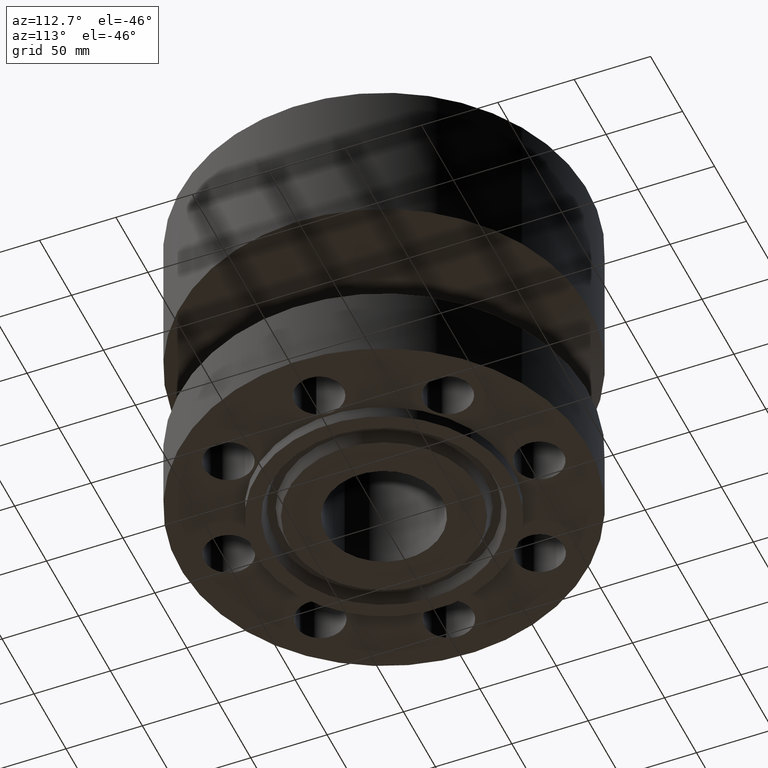
[diagram: clean part render]
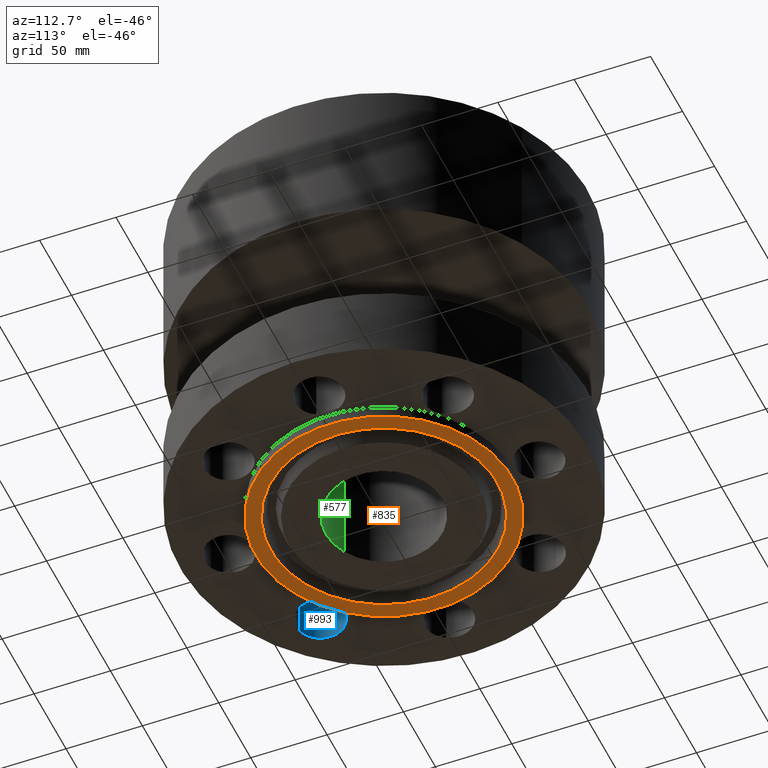
[diagram: same view with three faces highlighted in distinct colors, each labeled with its STEP entity id]
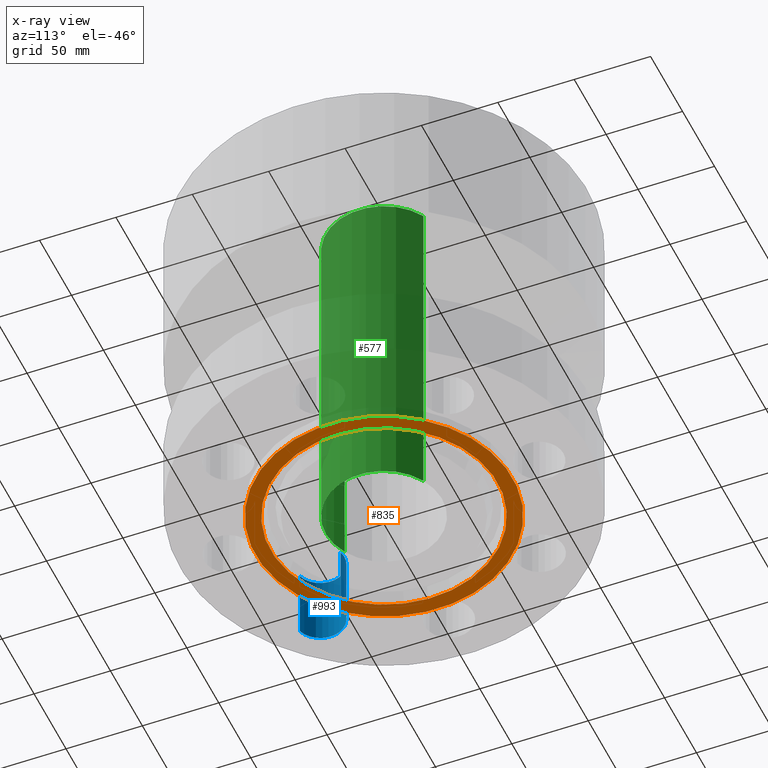
[diagram: x-ray of the same camera — body ghosted, the three highlighted faces saturated]
A machine part, auxiliary view with three faces highlighted in distinct colors.
The next image is the same camera in x-ray (body ghosted, the three faces saturated) — at least one of them is partly hidden behind the body in this view.
Their STEP definitions:

[orange] entity #835 — the highlighted planar face has unit normal (0, 0, -1).
#593=AXIS2_PLACEMENT_3D('Plane Axis2P3D',#590,#591,#592) ;
#784=AXIS2_PLACEMENT_3D('Circle Axis2P3D',#782,#783,$) ;
#803=AXIS2_PLACEMENT_3D('Circle Axis2P3D',#801,#802,$) ;
#815=AXIS2_PLACEMENT_3D('Circle Axis2P3D',#813,#814,$) ;
#824=AXIS2_PLACEMENT_3D('Circle Axis2P3D',#822,#823,$) ;
#590=CARTESIAN_POINT('Axis2P3D Location',(0.,1.50000000001,-0.313000000001)) ;
#779=CARTESIAN_POINT('Vertex',(-1.40088142381,-2.56429624585,-0.313000000001)) ;
#782=CARTESIAN_POINT('Axis2P3D Location',(0.,0.,-0.313000000001)) ;
#786=CARTESIAN_POINT('Vertex',(1.40088142381,2.56429624585,-0.313000000001)) ;
#801=CARTESIAN_POINT('Axis2P3D Location',(0.,0.,-0.313000000001)) ;
#813=CARTESIAN_POINT('Axis2P3D Location',(0.,0.,-0.313000000001)) ;
#817=CARTESIAN_POINT('Vertex',(-1.58809709663,-2.90699223627,-0.313000000001)) ;
#819=CARTESIAN_POINT('Vertex',(1.58809709663,2.90699223627,-0.313000000001)) ;
#822=CARTESIAN_POINT('Axis2P3D Location',(0.,0.,-0.313000000001)) ;
#591=DIRECTION('Axis2P3D Direction',(0.,0.,-0.0393700787402)) ;
#592=DIRECTION('Axis2P3D XDirection',(0.0393700787402,0.,0.)) ;
#783=DIRECTION('Axis2P3D Direction',(0.,0.,-0.0393700787402)) ;
#802=DIRECTION('Axis2P3D Direction',(0.,0.,-0.0393700787402)) ;
#814=DIRECTION('Axis2P3D Direction',(0.,0.,-0.0393700787402)) ;
#823=DIRECTION('Axis2P3D Direction',(0.,0.,-0.0393700787402)) ;
#828=ORIENTED_EDGE('',*,*,#821,.T.) ;
#829=ORIENTED_EDGE('',*,*,#826,.T.) ;
#832=ORIENTED_EDGE('',*,*,#805,.F.) ;
#833=ORIENTED_EDGE('',*,*,#788,.F.) ;
#834=FACE_BOUND('',#831,.T.) ;
#835=ADVANCED_FACE('PartBody',(#830,#834),#594,.T.) ;
#785=CIRCLE('generated circle',#784,2.92200000001) ;
#804=CIRCLE('generated circle',#803,2.92200000001) ;
#816=CIRCLE('generated circle',#815,3.31250000001) ;
#825=CIRCLE('generated circle',#824,3.31250000001) ;
#788=EDGE_CURVE('',#780,#787,#785,.T.) ;
#805=EDGE_CURVE('',#787,#780,#804,.T.) ;
#821=EDGE_CURVE('',#818,#820,#816,.T.) ;
#826=EDGE_CURVE('',#820,#818,#825,.T.) ;
#827=EDGE_LOOP('',(#828,#829)) ;
#831=EDGE_LOOP('',(#832,#833)) ;
#830=FACE_OUTER_BOUND('',#827,.T.) ;
#594=PLANE('',#593) ;
#780=VERTEX_POINT('',#779) ;
#787=VERTEX_POINT('',#786) ;
#818=VERTEX_POINT('',#817) ;
#820=VERTEX_POINT('',#819) ;

[blue] entity #993 — the highlighted cylindrical surface (edge-blend (fillet) strip) has radius 15.875 mm, axis along (0, 0, 1).
#163=AXIS2_PLACEMENT_3D('Circle Axis2P3D',#161,#162,$) ;
#966=AXIS2_PLACEMENT_3D('Cylinder Axis2P3D',#963,#964,#965) ;
#984=AXIS2_PLACEMENT_3D('Circle Axis2P3D',#982,#983,$) ;
#161=CARTESIAN_POINT('Axis2P3D Location',(-2.82842712476,-2.82842712476,0.)) ;
#165=CARTESIAN_POINT('Vertex',(-3.00438933172,-3.4281456435,0.)) ;
#167=CARTESIAN_POINT('Vertex',(-2.65246491779,-2.22870860601,0.)) ;
#963=CARTESIAN_POINT('Axis2P3D Location',(-2.82842712476,-2.82842712476,0.00393700787402)) ;
#968=CARTESIAN_POINT('Line Origine',(-3.00438933172,-3.4281456435,0.940000000004)) ;
#972=CARTESIAN_POINT('Vertex',(-3.00438933172,-3.4281456435,1.88000000001)) ;
#975=CARTESIAN_POINT('Line Origine',(-2.65246491779,-2.22870860601,0.940000000004)) ;
#979=CARTESIAN_POINT('Vertex',(-2.65246491779,-2.22870860601,1.88000000001)) ;
#982=CARTESIAN_POINT('Axis2P3D Location',(-2.82842712476,-2.82842712476,1.88000000001)) ;
#162=DIRECTION('Axis2P3D Direction',(0.,0.,-0.0393700787402)) ;
#964=DIRECTION('Axis2P3D Direction',(0.,0.,0.0393700787402)) ;
#965=DIRECTION('Axis2P3D XDirection',(-0.0110842335096,-0.0377775444876,0.)) ;
#969=DIRECTION('Vector Direction',(0.,0.,0.0393700787402)) ;
#976=DIRECTION('Vector Direction',(0.,0.,0.0393700787402)) ;
#983=DIRECTION('Axis2P3D Direction',(0.,0.,0.0393700787402)) ;
#970=VECTOR('Line Direction',#969,0.0393700787402) ;
#977=VECTOR('Line Direction',#976,0.0393700787402) ;
#988=ORIENTED_EDGE('',*,*,#974,.T.) ;
#989=ORIENTED_EDGE('',*,*,#169,.T.) ;
#990=ORIENTED_EDGE('',*,*,#981,.F.) ;
#991=ORIENTED_EDGE('',*,*,#986,.F.) ;
#993=ADVANCED_FACE('PartBody',(#992),#967,.F.) ;
#164=CIRCLE('generated circle',#163,0.625000000002) ;
#985=CIRCLE('generated circle',#984,0.625000000002) ;
#967=CYLINDRICAL_SURFACE('generated cylinder',#966,0.625000000002) ;
#169=EDGE_CURVE('',#166,#168,#164,.T.) ;
#974=EDGE_CURVE('',#973,#166,#971,.F.) ;
#981=EDGE_CURVE('',#980,#168,#978,.F.) ;
#986=EDGE_CURVE('',#973,#980,#985,.F.) ;
#987=EDGE_LOOP('',(#988,#989,#990,#991)) ;
#992=FACE_OUTER_BOUND('',#987,.T.) ;
#971=LINE('Line',#968,#970) ;
#978=LINE('Line',#975,#977) ;
#166=VERTEX_POINT('',#165) ;
#168=VERTEX_POINT('',#167) ;
#973=VERTEX_POINT('',#972) ;
#980=VERTEX_POINT('',#979) ;

[green] entity #577 — the highlighted cylindrical surface (partial cylindrical patch) has radius 38.1 mm, axis along (0, 0, -1).
#539=AXIS2_PLACEMENT_3D('Circle Axis2P3D',#537,#538,$) ;
#550=AXIS2_PLACEMENT_3D('Cylinder Axis2P3D',#547,#548,#549) ;
#561=AXIS2_PLACEMENT_3D('Circle Axis2P3D',#559,#560,$) ;
#532=CARTESIAN_POINT('Vertex',(-0.719138307909,-1.31637384284,8.75000000003)) ;
#534=CARTESIAN_POINT('Vertex',(0.719138307909,1.31637384284,8.75000000003)) ;
#537=CARTESIAN_POINT('Axis2P3D Location',(0.,0.,8.75000000003)) ;
#547=CARTESIAN_POINT('Axis2P3D Location',(0.,0.,4.21850000002)) ;
#552=CARTESIAN_POINT('Line Origine',(0.719138307909,1.31637384284,4.21850000002)) ;
#556=CARTESIAN_POINT('Vertex',(0.719138307909,1.31637384284,-0.313000000001)) ;
#559=CARTESIAN_POINT('Axis2P3D Location',(0.,0.,-0.313000000001)) ;
#563=CARTESIAN_POINT('Vertex',(-0.719138307909,-1.31637384284,-0.313000000001)) ;
#566=CARTESIAN_POINT('Line Origine',(-0.719138307909,-1.31637384284,4.21850000002)) ;
#538=DIRECTION('Axis2P3D Direction',(0.,0.,-0.0393700787402)) ;
#548=DIRECTION('Axis2P3D Direction',(0.,0.,-0.0393700787402)) ;
#549=DIRECTION('Axis2P3D XDirection',(-0.0188750212049,-0.0345504945626,0.)) ;
#553=DIRECTION('Vector Direction',(0.,0.,-0.0393700787402)) ;
#560=DIRECTION('Axis2P3D Direction',(0.,0.,-0.0393700787402)) ;
#567=DIRECTION('Vector Direction',(0.,0.,-0.0393700787402)) ;
#554=VECTOR('Line Direction',#553,0.0393700787402) ;
#568=VECTOR('Line Direction',#567,0.0393700787402) ;
#572=ORIENTED_EDGE('',*,*,#541,.F.) ;
#573=ORIENTED_EDGE('',*,*,#558,.T.) ;
#574=ORIENTED_EDGE('',*,*,#565,.T.) ;
#575=ORIENTED_EDGE('',*,*,#570,.F.) ;
#577=ADVANCED_FACE('PartBody',(#576),#551,.F.) ;
#540=CIRCLE('generated circle',#539,1.50000000001) ;
#562=CIRCLE('generated circle',#561,1.50000000001) ;
#551=CYLINDRICAL_SURFACE('generated cylinder',#550,1.50000000001) ;
#541=EDGE_CURVE('',#535,#533,#540,.T.) ;
#558=EDGE_CURVE('',#535,#557,#555,.T.) ;
#565=EDGE_CURVE('',#557,#564,#562,.T.) ;
#570=EDGE_CURVE('',#533,#564,#569,.T.) ;
#571=EDGE_LOOP('',(#572,#573,#574,#575)) ;
#576=FACE_OUTER_BOUND('',#571,.T.) ;
#555=LINE('Line',#552,#554) ;
#569=LINE('Line',#566,#568) ;
#533=VERTEX_POINT('',#532) ;
#535=VERTEX_POINT('',#534) ;
#557=VERTEX_POINT('',#556) ;
#564=VERTEX_POINT('',#563) ;